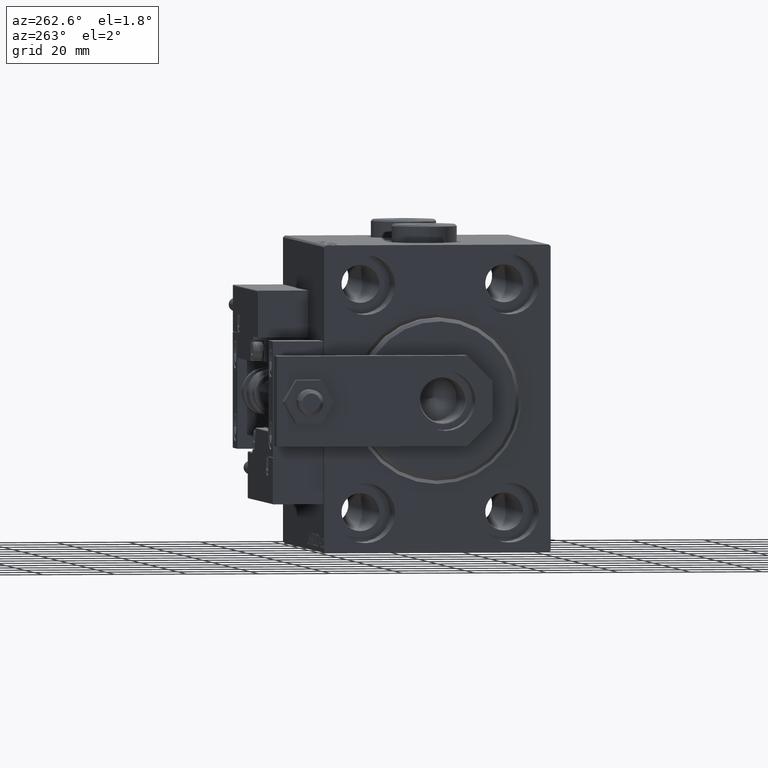
[diagram: clean part render]
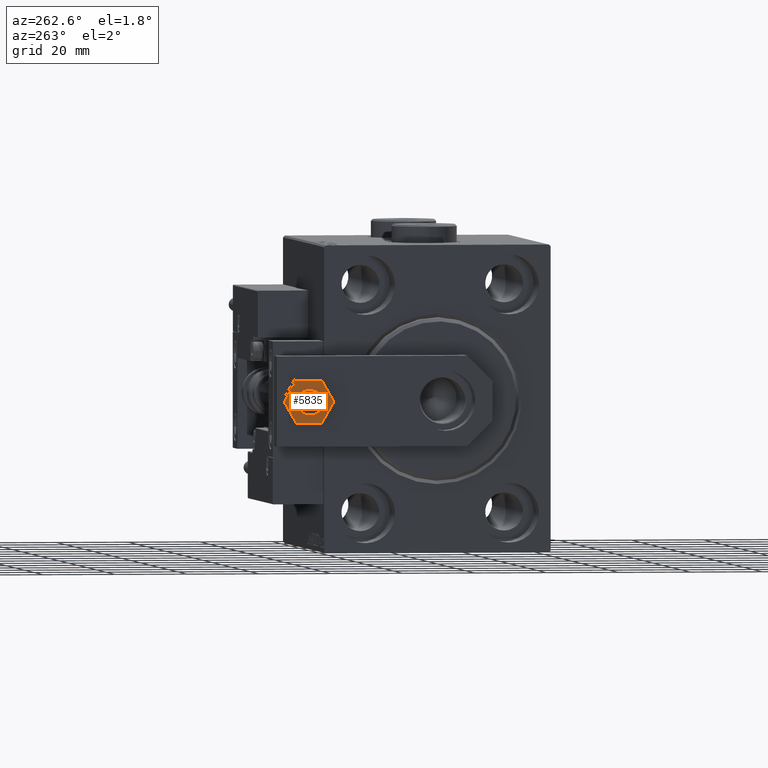
[diagram: same view with one face highlighted and labeled with its STEP entity id]
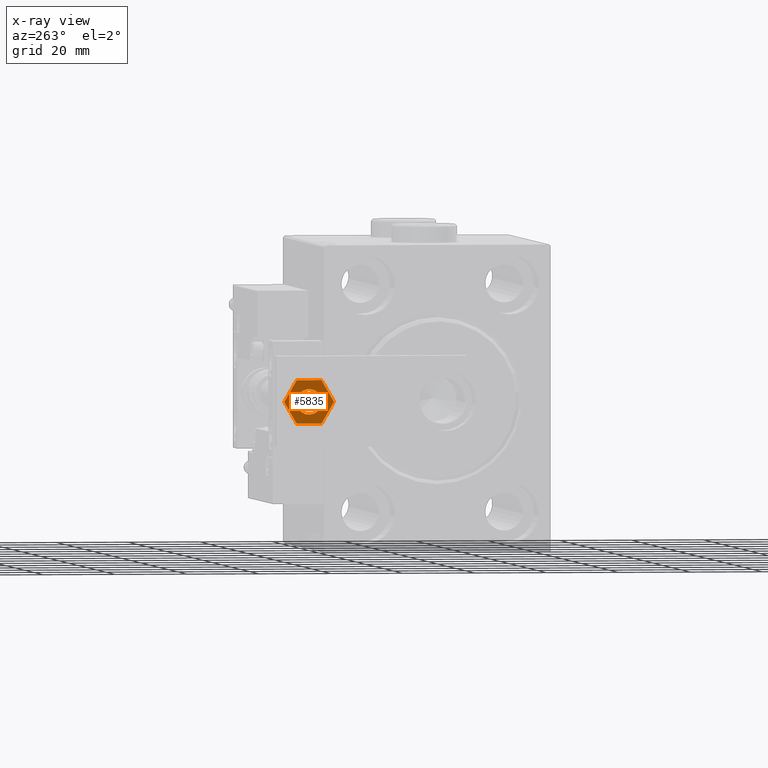
[diagram: x-ray of the same camera — body ghosted, the highlighted face saturated]
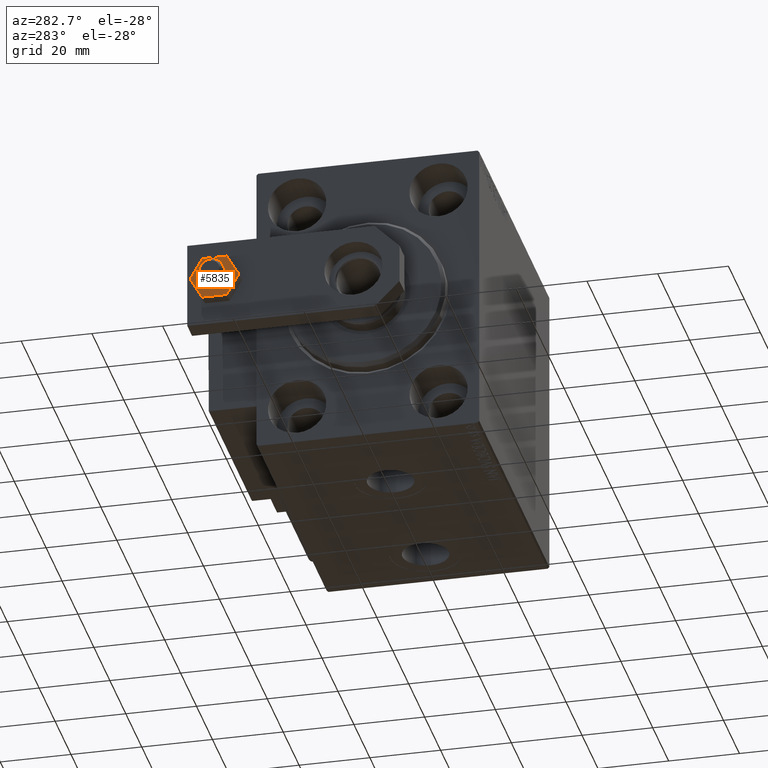
[diagram: same view with one face highlighted and labeled with its STEP entity id]
A machine part, auxiliary view. The second image highlights one B-rep face of the part: STEP entity #5835.
The next image is the same camera in x-ray: the body ghosted, the highlighted face saturated — about 0% of this face is hidden behind the body in this view.
A second angle (auxiliary view) of the same face is appended — the face is thin or edge-on in the first view.
In plain terms, the highlighted planar face has unit normal (-1, 0, 0).
Its self-contained STEP definition (entity closure, byte-faithful):
#2122 = DIRECTION ( 'NONE',  ( 0.000000000000000000, -0.000000000000000000, 1.000000000000000000 ) ) ;
#2666 = CARTESIAN_POINT ( 'NONE',  ( -3.464101615137754830, -6.000000000000002665, 3.700000000000000178 ) ) ;
#3521 = FACE_OUTER_BOUND ( 'NONE', #12802, .T. ) ;
#3640 = EDGE_CURVE ( 'NONE', #8729, #39054, #47235, .T. ) ;
#3736 = ORIENTED_EDGE ( 'NONE', *, *, #21364, .T. ) ;
#4632 = LINE ( 'NONE', #16605, #43343 ) ;
#5614 = ORIENTED_EDGE ( 'NONE', *, *, #17569, .F. ) ;
#5680 = CARTESIAN_POINT ( 'NONE',  ( -3.464101615137754830, -6.000000000000002665, 3.700000000000000178 ) ) ;
#5835 = ADVANCED_FACE ( 'NONE', ( #35521, #3521 ), #15252, .T. ) ;
#6585 = LINE ( 'NONE', #2666, #20157 ) ;
#6787 = AXIS2_PLACEMENT_3D ( 'NONE', #16991, #2122, #21902 ) ;
#7706 = VECTOR ( 'NONE', #10431, 1000.000000000000000 ) ;
#7939 = CARTESIAN_POINT ( 'NONE',  ( 0.000000000000000000, 0.000000000000000000, 3.700000000000000178 ) ) ;
#8729 = VERTEX_POINT ( 'NONE', #44412 ) ;
#8862 = DIRECTION ( 'NONE',  ( 0.4999999999999999445, -0.8660254037844387076, 0.000000000000000000 ) ) ;
#10431 = DIRECTION ( 'NONE',  ( -1.000000000000000000, -1.251928832280966188E-16, 0.000000000000000000 ) ) ;
#10788 = DIRECTION ( 'NONE',  ( -0.5000000000000000000, -0.8660254037844385966, 0.000000000000000000 ) ) ;
#11432 = AXIS2_PLACEMENT_3D ( 'NONE', #7939, #27453, #51458 ) ;
#12274 = DIRECTION ( 'NONE',  ( -0.5000000000000000000, 0.8660254037844385966, 0.000000000000000000 ) ) ;
#12802 = EDGE_LOOP ( 'NONE', ( #33203, #32274, #3736, #16858, #42953, #42611 ) ) ;
#13810 = LINE ( 'NONE', #18214, #7706 ) ;
#15252 = PLANE ( 'NONE',  #11432 ) ;
#16605 = CARTESIAN_POINT ( 'NONE',  ( 3.464101615137755719, -6.000000000000003553, 3.700000000000000178 ) ) ;
#16684 = VECTOR ( 'NONE', #10788, 1000.000000000000227 ) ;
#16858 = ORIENTED_EDGE ( 'NONE', *, *, #17629, .T. ) ;
#16991 = CARTESIAN_POINT ( 'NONE',  ( 0.000000000000000000, 0.000000000000000000, 3.700000000000000178 ) ) ;
#17046 = CARTESIAN_POINT ( 'NONE',  ( 0.000000000000000000, 0.000000000000000000, 3.700000000000000178 ) ) ;
#17569 = EDGE_CURVE ( 'NONE', #46175, #22340, #28311, .T. ) ;
#17629 = EDGE_CURVE ( 'NONE', #22411, #42630, #26908, .T. ) ;
#17967 = CARTESIAN_POINT ( 'NONE',  ( -3.500000000000000000, 4.286263797015736595E-16, 3.700000000000000178 ) ) ;
#18214 = CARTESIAN_POINT ( 'NONE',  ( 3.464101615137752166, 6.000000000000004441, 3.700000000000000178 ) ) ;
#18860 = EDGE_CURVE ( 'NONE', #22340, #46175, #22554, .T. ) ;
#20157 = VECTOR ( 'NONE', #49334, 1000.000000000000000 ) ;
#21148 = EDGE_CURVE ( 'NONE', #21692, #30871, #6585, .T. ) ;
#21364 = EDGE_CURVE ( 'NONE', #39054, #22411, #13810, .T. ) ;
#21692 = VERTEX_POINT ( 'NONE', #5680 ) ;
#21902 = DIRECTION ( 'NONE',  ( 1.000000000000000000, 0.000000000000000000, 0.000000000000000000 ) ) ;
#22340 = VERTEX_POINT ( 'NONE', #17967 ) ;
#22411 = VERTEX_POINT ( 'NONE', #42480 ) ;
#22554 = CIRCLE ( 'NONE', #6787, 3.500000000000000000 ) ;
#26908 = LINE ( 'NONE', #38399, #16684 ) ;
#27102 = EDGE_LOOP ( 'NONE', ( #5614, #38164 ) ) ;
#27453 = DIRECTION ( 'NONE',  ( 0.000000000000000000, -0.000000000000000000, 1.000000000000000000 ) ) ;
#28311 = CIRCLE ( 'NONE', #34981, 3.500000000000000000 ) ;
#28376 = CARTESIAN_POINT ( 'NONE',  ( -6.928203230275511437, 1.692629429735182706E-15, 3.700000000000000178 ) ) ;
#30871 = VERTEX_POINT ( 'NONE', #35339 ) ;
#31704 = DIRECTION ( 'NONE',  ( 0.4999999999999996669, 0.8660254037844388186, 0.000000000000000000 ) ) ;
#32274 = ORIENTED_EDGE ( 'NONE', *, *, #3640, .T. ) ;
#32624 = EDGE_CURVE ( 'NONE', #30871, #8729, #4632, .T. ) ;
#33203 = ORIENTED_EDGE ( 'NONE', *, *, #32624, .T. ) ;
#33622 = CARTESIAN_POINT ( 'NONE',  ( 3.464101615137752166, 6.000000000000004441, 3.700000000000000178 ) ) ;
#34444 = CARTESIAN_POINT ( 'NONE',  ( 3.500000000000000000, 0.000000000000000000, 3.700000000000000178 ) ) ;
#34981 = AXIS2_PLACEMENT_3D ( 'NONE', #17046, #41275, #44689 ) ;
#35044 = EDGE_CURVE ( 'NONE', #42630, #21692, #50148, .T. ) ;
#35339 = CARTESIAN_POINT ( 'NONE',  ( 3.464101615137755719, -6.000000000000003553, 3.700000000000000178 ) ) ;
#35521 = FACE_BOUND ( 'NONE', #27102, .T. ) ;
#36275 = VECTOR ( 'NONE', #12274, 1000.000000000000227 ) ;
#38164 = ORIENTED_EDGE ( 'NONE', *, *, #18860, .F. ) ;
#38399 = CARTESIAN_POINT ( 'NONE',  ( -3.464101615137755719, 6.000000000000003553, 3.700000000000000178 ) ) ;
#38751 = CARTESIAN_POINT ( 'NONE',  ( -6.928203230275511437, 1.692629429735182706E-15, 3.700000000000000178 ) ) ;
#39054 = VERTEX_POINT ( 'NONE', #33622 ) ;
#41275 = DIRECTION ( 'NONE',  ( 0.000000000000000000, -0.000000000000000000, 1.000000000000000000 ) ) ;
#42480 = CARTESIAN_POINT ( 'NONE',  ( -3.464101615137755719, 6.000000000000003553, 3.700000000000000178 ) ) ;
#42611 = ORIENTED_EDGE ( 'NONE', *, *, #21148, .T. ) ;
#42630 = VERTEX_POINT ( 'NONE', #38751 ) ;
#42953 = ORIENTED_EDGE ( 'NONE', *, *, #35044, .T. ) ;
#43312 = CARTESIAN_POINT ( 'NONE',  ( 6.928203230275509661, 8.658957839996121553E-16, 3.700000000000000178 ) ) ;
#43343 = VECTOR ( 'NONE', #31704, 1000.000000000000000 ) ;
#44412 = CARTESIAN_POINT ( 'NONE',  ( 6.928203230275509661, 8.658957839996121553E-16, 3.700000000000000178 ) ) ;
#44689 = DIRECTION ( 'NONE',  ( 1.000000000000000000, 0.000000000000000000, 0.000000000000000000 ) ) ;
#46175 = VERTEX_POINT ( 'NONE', #34444 ) ;
#47235 = LINE ( 'NONE', #43312, #36275 ) ;
#47591 = VECTOR ( 'NONE', #8862, 1000.000000000000000 ) ;
#49334 = DIRECTION ( 'NONE',  ( 1.000000000000000000, -1.251928832280965942E-16, 0.000000000000000000 ) ) ;
#50148 = LINE ( 'NONE', #28376, #47591 ) ;
#51458 = DIRECTION ( 'NONE',  ( 1.000000000000000000, 0.000000000000000000, -0.000000000000000000 ) ) ;